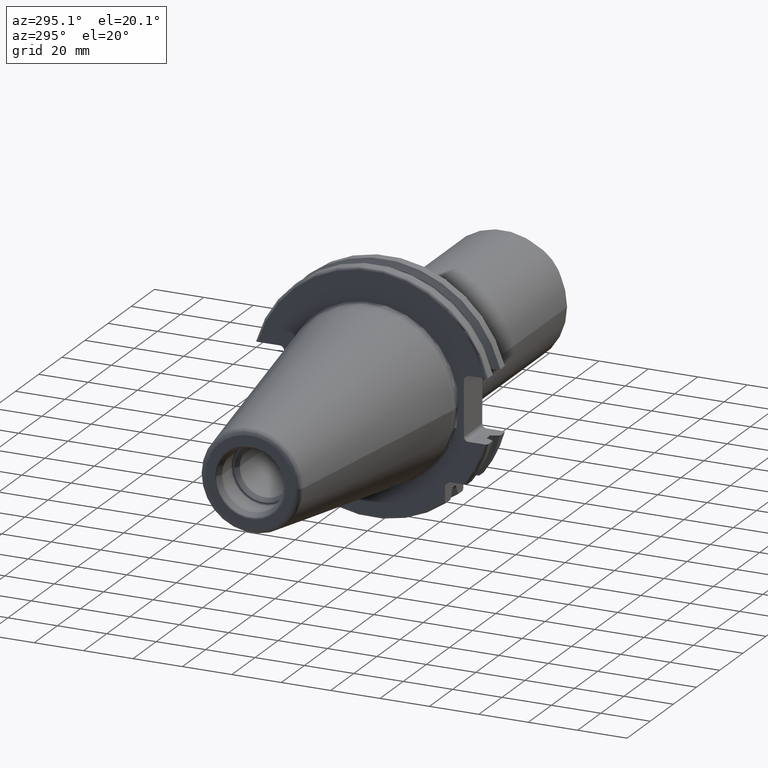
[diagram: clean part render]
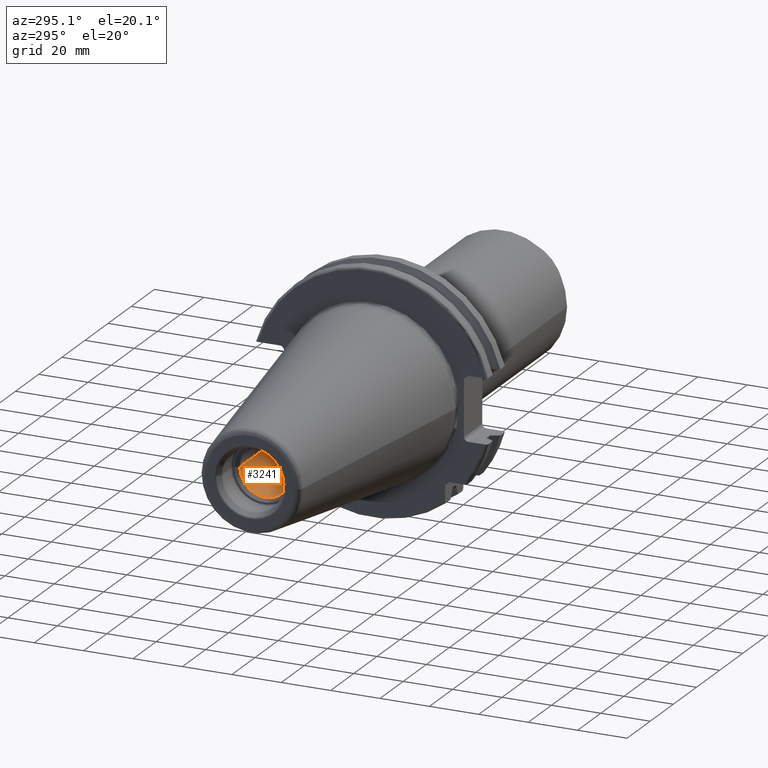
[diagram: same view with one face highlighted and labeled with its STEP entity id]
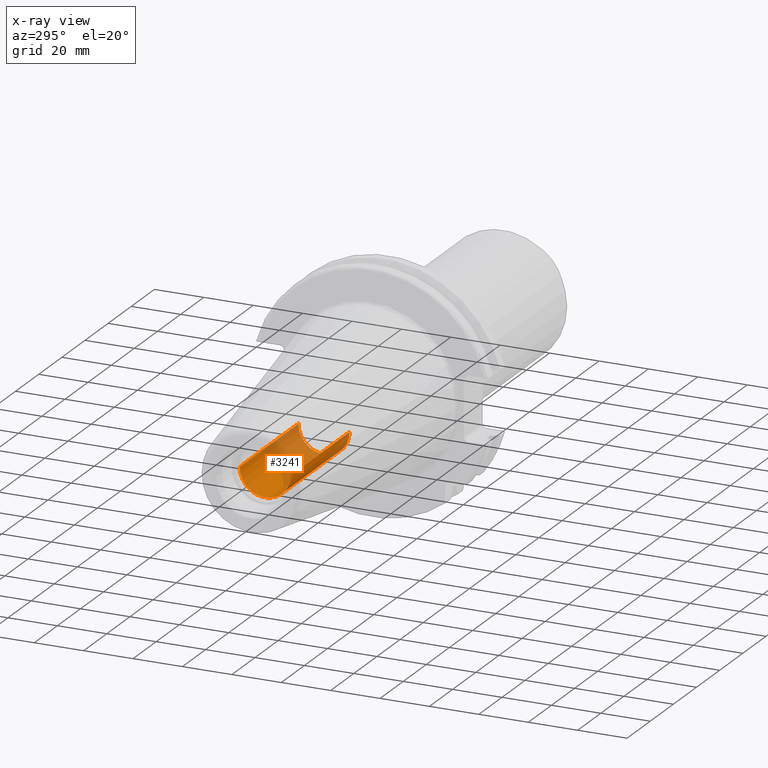
[diagram: x-ray of the same camera — body ghosted, the highlighted face saturated]
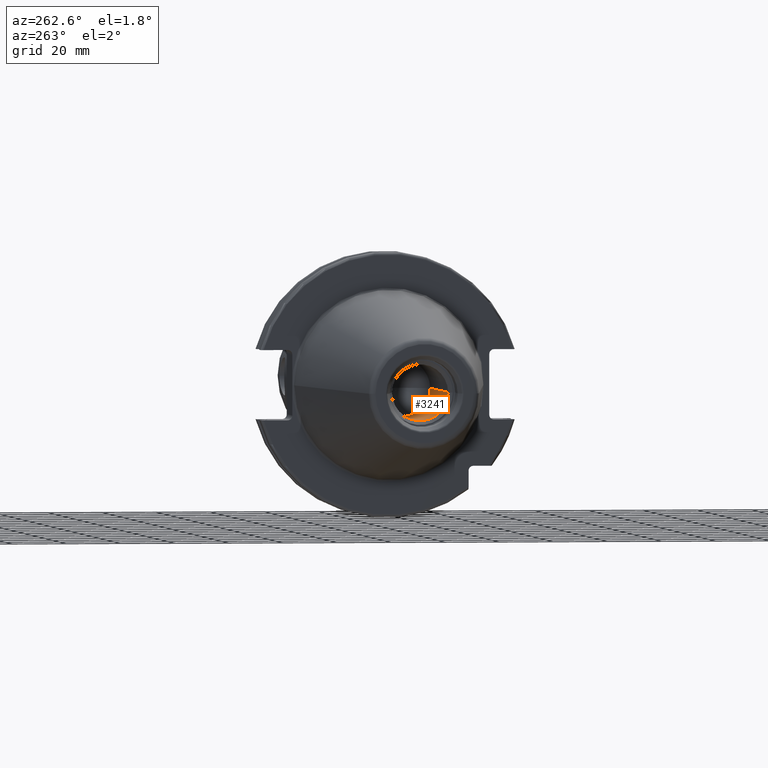
[diagram: same view with one face highlighted and labeled with its STEP entity id]
A machine part, auxiliary view. The second image highlights one B-rep face of the part: STEP entity #3241.
The next image is the same camera in x-ray: the body ghosted, the highlighted face saturated — about 45% of this face is hidden behind the body in this view.
A second angle (auxiliary view) of the same face is appended — the face is thin or edge-on in the first view.
In plain terms, the highlighted cylindrical surface (edge-blend (fillet) strip) has radius 10.375 mm, axis along (1, 0, 0).
Its self-contained STEP definition (entity closure, byte-faithful):
#1417=CARTESIAN_POINT('',(-8.835E1,0.E0,0.E0));
#1418=DIRECTION('',(-1.E0,0.E0,0.E0));
#1419=DIRECTION('',(0.E0,1.E0,0.E0));
#1420=AXIS2_PLACEMENT_3D('',#1417,#1418,#1419);
#1426=DIRECTION('',(-1.E0,0.E0,0.E0));
#1427=VECTOR('',#1426,5.075E1);
#1428=CARTESIAN_POINT('',(-3.76E1,1.0375E1,0.E0));
#1429=LINE('',#1428,#1427);
#1430=CARTESIAN_POINT('',(-3.76E1,0.E0,0.E0));
#1431=DIRECTION('',(-1.E0,0.E0,0.E0));
#1432=DIRECTION('',(0.E0,1.E0,0.E0));
#1433=AXIS2_PLACEMENT_3D('',#1430,#1431,#1432);
#1435=DIRECTION('',(-1.E0,0.E0,0.E0));
#1436=VECTOR('',#1435,5.075E1);
#1437=CARTESIAN_POINT('',(-3.76E1,-1.0375E1,0.E0));
#1438=LINE('',#1437,#1436);
#1471=CARTESIAN_POINT('',(-3.76E1,1.0375E1,0.E0));
#1473=VERTEX_POINT('',#1471);
#1474=CARTESIAN_POINT('',(-8.835E1,1.0375E1,0.E0));
#1475=VERTEX_POINT('',#1474);
#1494=CARTESIAN_POINT('',(-3.76E1,-1.0375E1,0.E0));
#1495=VERTEX_POINT('',#1494);
#1496=CARTESIAN_POINT('',(-8.835E1,-1.0375E1,0.E0));
#1497=VERTEX_POINT('',#1496);
#3227=CARTESIAN_POINT('',(-1.051116964461E2,0.E0,0.E0));
#3228=DIRECTION('',(1.E0,0.E0,0.E0));
#3229=DIRECTION('',(0.E0,-1.E0,0.E0));
#3230=AXIS2_PLACEMENT_3D('',#3227,#3228,#3229);
#3231=CYLINDRICAL_SURFACE('',#3230,1.0375E1);
#3233=ORIENTED_EDGE('',*,*,#3232,.F.);
#3235=ORIENTED_EDGE('',*,*,#3234,.T.);
#3237=ORIENTED_EDGE('',*,*,#3236,.T.);
#3238=ORIENTED_EDGE('',*,*,#3220,.F.);
#3239=EDGE_LOOP('',(#3233,#3235,#3237,#3238));
#3240=FACE_OUTER_BOUND('',#3239,.F.);
#3241=ADVANCED_FACE('',(#3240),#3231,.F.);
#1421=CIRCLE('',#1420,1.0375E1);
#1434=CIRCLE('',#1433,1.0375E1);
#3220=EDGE_CURVE('',#1475,#1497,#1421,.T.);
#3232=EDGE_CURVE('',#1473,#1475,#1429,.T.);
#3234=EDGE_CURVE('',#1473,#1495,#1434,.T.);
#3236=EDGE_CURVE('',#1495,#1497,#1438,.T.);